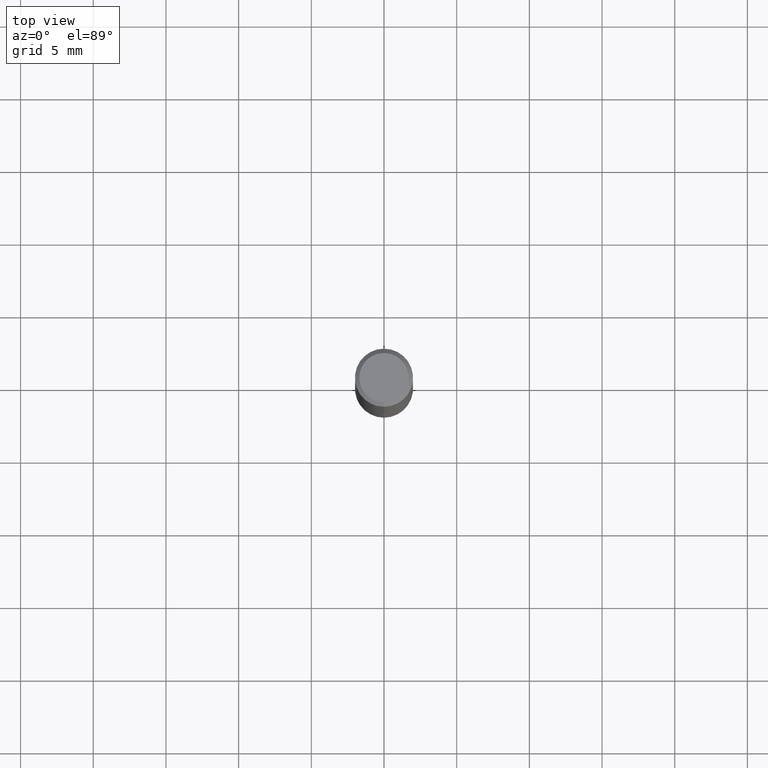
[diagram: clean part render]
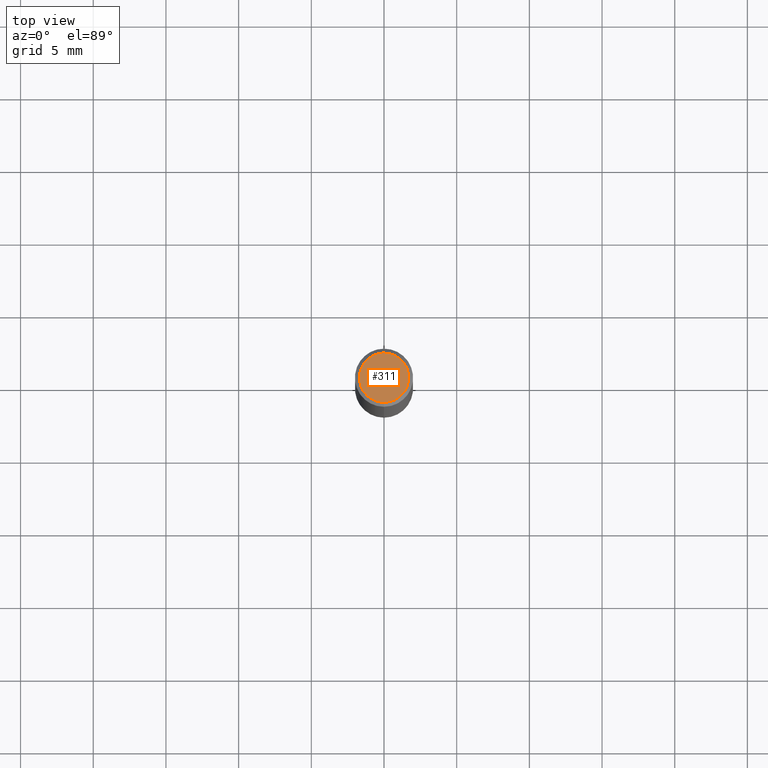
[diagram: same view with one face highlighted and labeled with its STEP entity id]
A machine part, top view. The second image highlights one B-rep face of the part: STEP entity #311.
In plain terms, the highlighted planar face has unit normal (-0, 0, 1).
Its self-contained STEP definition (entity closure, byte-faithful):
#159=VERTEX_POINT('',#397);
#165=VERTEX_POINT('',#403);
#263=EDGE_CURVE('',#159,#165,#514,.T.);
#311=ADVANCED_FACE('',(#569),#570,.T.);
#327=EDGE_CURVE('',#165,#159,#586,.T.);
#397=CARTESIAN_POINT('',(2.08183080149804E-016,-1.7,0.00999999999999801));
#403=CARTESIAN_POINT('',(0.0,1.7,0.00999999999999801));
#514=CIRCLE('',#805,1.7);
#569=FACE_OUTER_BOUND('',#883,.T.);
#570=PLANE('',#884);
#586=CIRCLE('',#905,1.7);
#805=AXIS2_PLACEMENT_3D('',#1121,#1122,#1123);
#883=EDGE_LOOP('',(#1202,#1203));
#884=AXIS2_PLACEMENT_3D('',#1204,#1205,#1206);
#905=AXIS2_PLACEMENT_3D('',#1219,#1220,#1221);
#1121=CARTESIAN_POINT('',(0.0,0.0,0.00999999999999801));
#1122=DIRECTION('',(0.0,0.0,-1.0));
#1123=DIRECTION('',(0.0,1.0,0.0));
#1202=ORIENTED_EDGE('',*,*,#327,.F.);
#1203=ORIENTED_EDGE('',*,*,#263,.F.);
#1204=CARTESIAN_POINT('',(0.0,0.85,0.00999999999999801));
#1205=DIRECTION('',(-0.0,0.0,1.0));
#1206=DIRECTION('',(0.0,-1.0,0.0));
#1219=CARTESIAN_POINT('',(0.0,0.0,0.00999999999999801));
#1220=DIRECTION('',(0.0,0.0,-1.0));
#1221=DIRECTION('',(0.0,1.0,0.0));